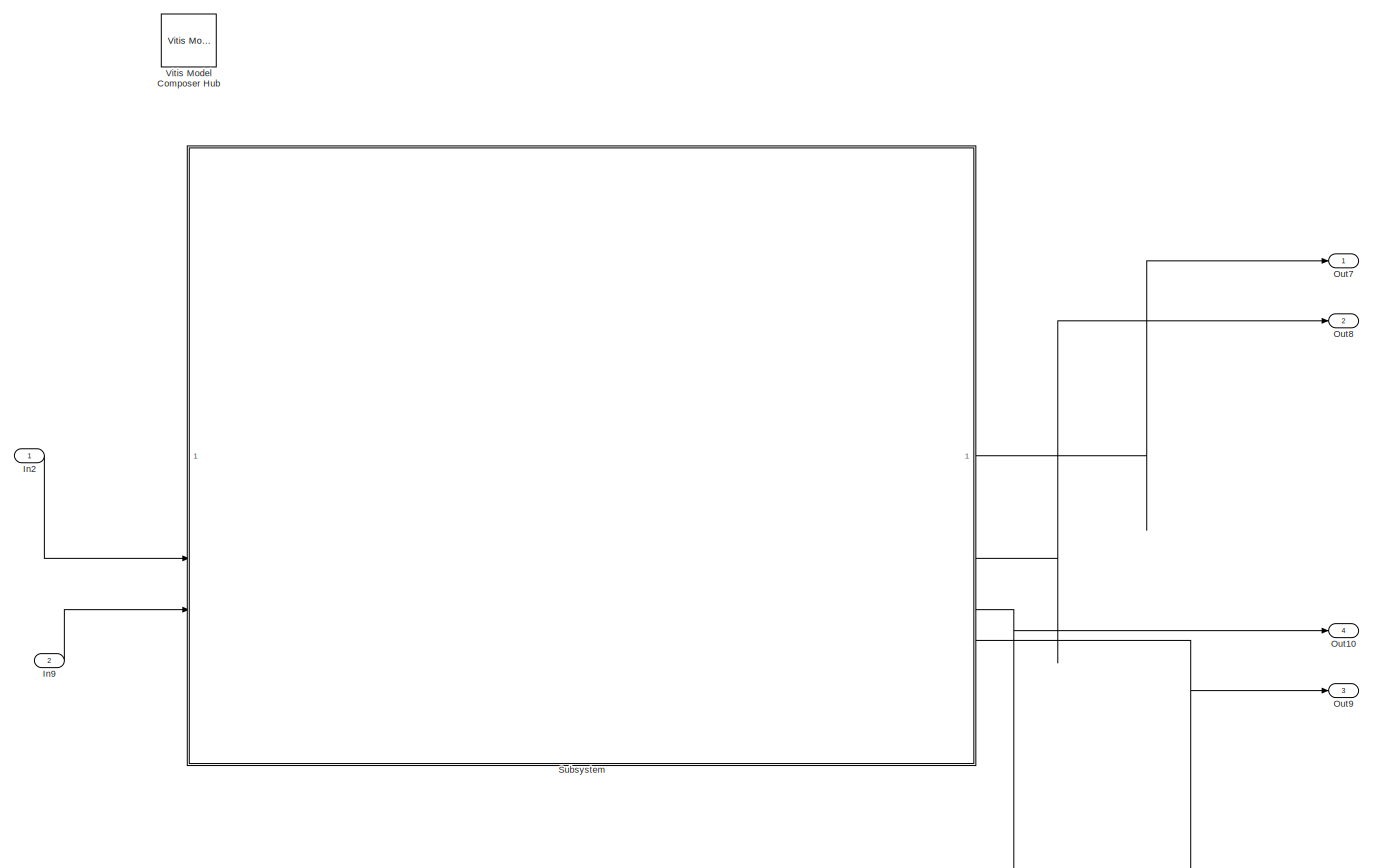
[diagram: root canvas - part 1/1, most of the canvas]
MODEL slx_37cddf83f31d
KIND model
CONFIG AbsTol = auto
CONFIG EnableMultiTasking = off
CONFIG FixedStep = auto
CONFIG MaxStep = auto
CONFIG MinStep = auto
CONFIG RelTol = 1e-3
CONFIG SampleTimeConstraint = Unconstrained
CONFIG SolverName = VariableStepAuto
CONFIG StartTime = 0.0
CONFIG StopTime = 0.001
BLOCK [Inport] In2
BLOCK [Inport] In9
  Port = 2
BLOCK [Outport] Out10
  Port = 4
BLOCK [Outport] Out7
BLOCK [Outport] Out8
  Port = 2
BLOCK [Outport] Out9
  Port = 3
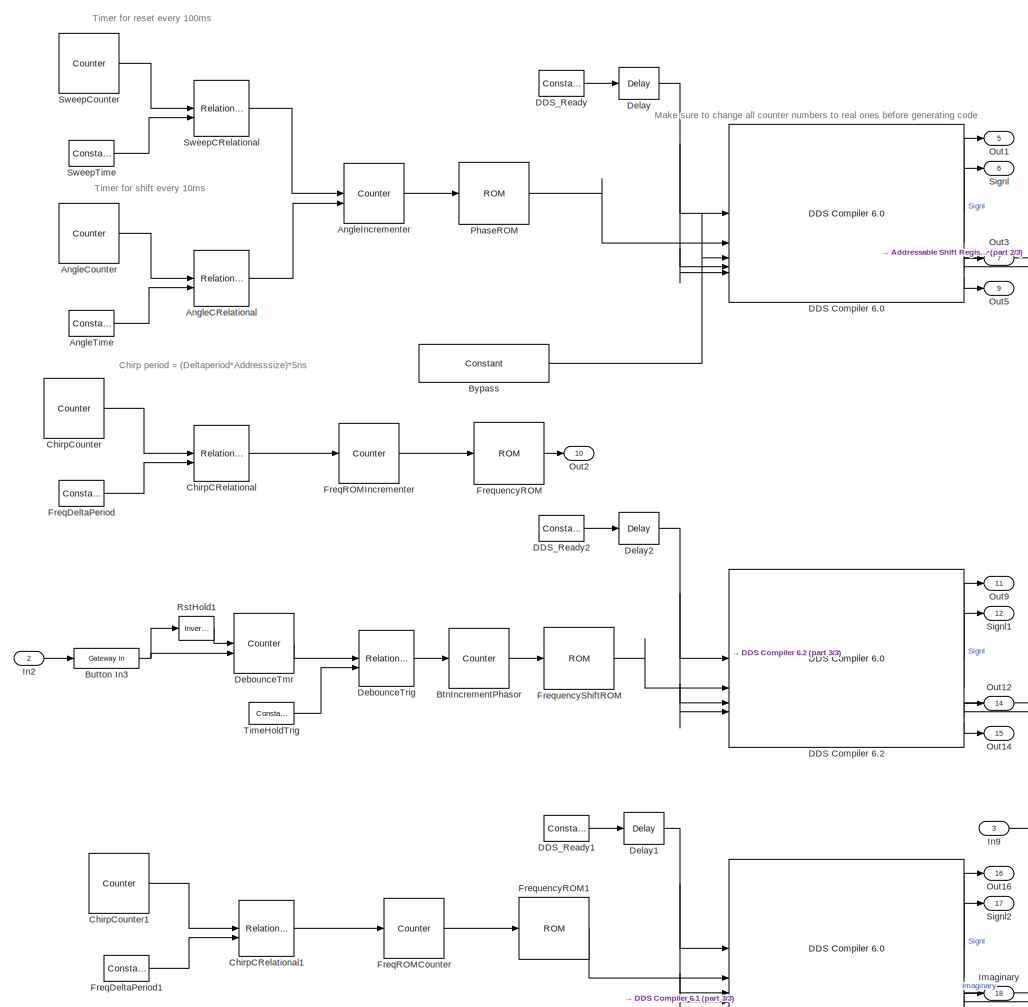
[diagram: Subsystem - part 1/3, left side, full height]
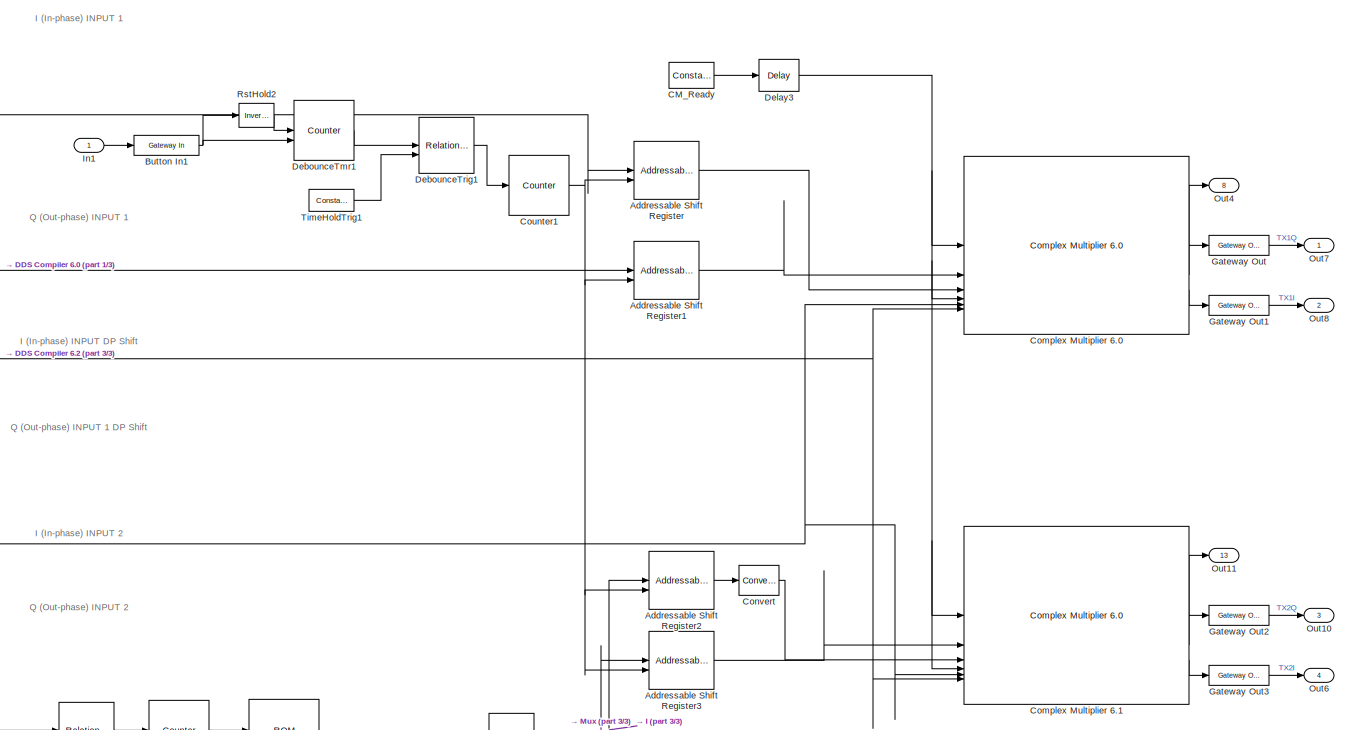
[diagram: Subsystem - part 2/3, middle right region]
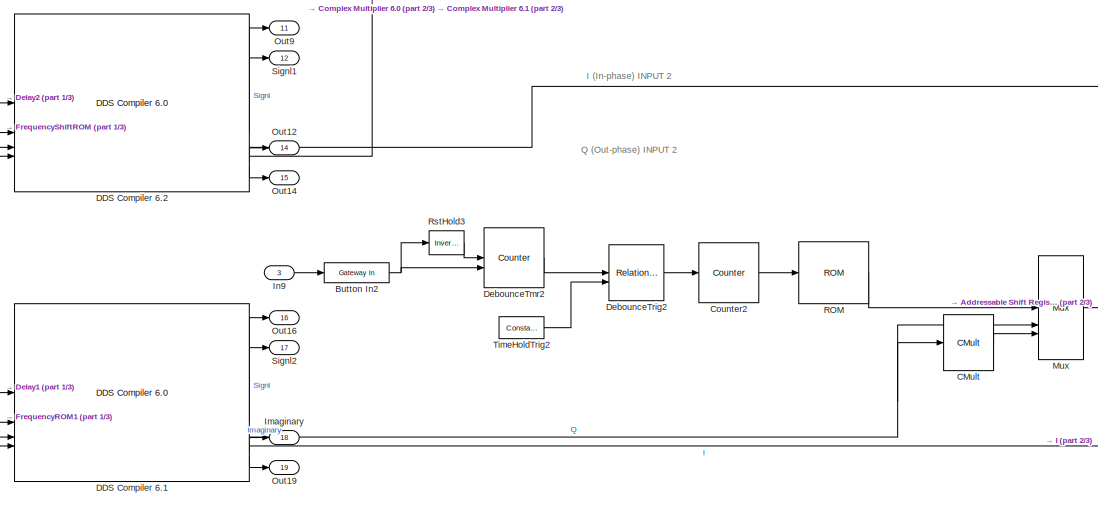
[diagram: Subsystem - part 3/3, bottom center region]
BLOCK [SubSystem] Subsystem
  SystemSampleTime = 1/200e6
BLOCK [Reference] Subsystem/Addressable Shift Register  REF=hdlBasic/Addressable Shift Register
  SourceBlock = hdlBasic/Addressable Shift Register
  SourceType = Addressable Shift Register Block
BLOCK [Reference] Subsystem/Addressable Shift Register1  REF=hdlBasic/Addressable Shift Register
  SourceBlock = hdlBasic/Addressable Shift Register
  SourceType = Addressable Shift Register Block
BLOCK [Reference] Subsystem/Addressable Shift Register2  REF=hdlBasic/Addressable Shift Register
  SourceBlock = hdlBasic/Addressable Shift Register
  SourceType = Addressable Shift Register Block
BLOCK [Reference] Subsystem/Addressable Shift Register3  REF=hdlBasic/Addressable Shift Register
  SourceBlock = hdlBasic/Addressable Shift Register
  SourceType = Addressable Shift Register Block
BLOCK [Reference] Subsystem/AngleCRelational  REF=hdlBasic/Relational
  SourceBlock = hdlBasic/Relational
  SourceType = Arithmetic Relational Operator Block
BLOCK [Reference] Subsystem/AngleCounter  REF=hdlBasic/Counter
  SourceBlock = hdlBasic/Counter
  SourceType = Counter Block
BLOCK [Reference] Subsystem/AngleIncrementer  REF=hdlBasic/Counter
  SourceBlock = hdlBasic/Counter
  SourceType = Counter Block
BLOCK [Reference] Subsystem/AngleTime  REF=hdlBasic/Constant
  SourceBlock = hdlBasic/Constant
  SourceType = Constant Block Block
BLOCK [Reference] Subsystem/BtnIncrementPhasor  REF=hdlBasic/Counter
  SourceBlock = hdlBasic/Counter
  SourceType = Counter Block
BLOCK [Reference] Subsystem/Button In1  REF=hdlBasic/Gateway In
  SourceBlock = hdlBasic/Gateway In
  SourceType = Gateway In Block
BLOCK [Reference] Subsystem/Button In2  REF=hdlBasic/Gateway In
  SourceBlock = hdlBasic/Gateway In
  SourceType = Gateway In Block
BLOCK [Reference] Subsystem/Button In3  REF=hdlBasic/Gateway In
  SourceBlock = hdlBasic/Gateway In
  SourceType = Gateway In Block
BLOCK [Reference] Subsystem/Bypass  REF=hdlBasic/Constant
  SourceBlock = hdlBasic/Constant
  SourceType = Constant Block Block
BLOCK [Reference] Subsystem/CM_Ready  REF=hdlBasic/Constant
  SourceBlock = hdlBasic/Constant
  SourceType = Constant Block Block
BLOCK [Reference] Subsystem/CMult  REF=hdlBasic/CMult
  SourceBlock = hdlBasic/CMult
  SourceType = Constant Multiplier Block
BLOCK [Reference] Subsystem/ChirpCRelational  REF=hdlBasic/Relational
  SourceBlock = hdlBasic/Relational
  SourceType = Arithmetic Relational Operator Block
BLOCK [Reference] Subsystem/ChirpCRelational1  REF=hdlBasic/Relational
  SourceBlock = hdlBasic/Relational
  SourceType = Arithmetic Relational Operator Block
BLOCK [Reference] Subsystem/ChirpCounter  REF=hdlBasic/Counter
  SourceBlock = hdlBasic/Counter
  SourceType = Counter Block
BLOCK [Reference] Subsystem/ChirpCounter1  REF=hdlBasic/Counter
  SourceBlock = hdlBasic/Counter
  SourceType = Counter Block
BLOCK [Reference] Subsystem/Complex Multiplier 6.0  REF=hdlDSPIP/Complex Multiplier 6.0 
  SourceBlock = hdlDSPIP/Complex Multiplier 6.0
  SourceType = Complex Multiplier 6.0  Block
BLOCK [Reference] Subsystem/Complex Multiplier 6.1  REF=hdlDSPIP/Complex Multiplier 6.0 
  SourceBlock = hdlDSPIP/Complex Multiplier 6.0
  SourceType = Complex Multiplier 6.0  Block
BLOCK [Reference] Subsystem/Convert  REF=hdlBasic/Convert
  SourceBlock = hdlBasic/Convert
  SourceType = Type Converter Block
BLOCK [Reference] Subsystem/Counter1  REF=hdlBasic/Counter
  SourceBlock = hdlBasic/Counter
  SourceType = Counter Block
BLOCK [Reference] Subsystem/Counter2  REF=hdlBasic/Counter
  SourceBlock = hdlBasic/Counter
  SourceType = Counter Block
BLOCK [Reference] Subsystem/DDS Compiler 6.0  REF=hdlDSPIP/DDS Compiler 6.0 
  SourceBlock = hdlDSPIP/DDS Compiler 6.0
  SourceType = DDS Compiler 6.0 Block
BLOCK [Reference] Subsystem/DDS Compiler 6.1  REF=hdlDSPIP/DDS Compiler 6.0 
  SourceBlock = hdlDSPIP/DDS Compiler 6.0
  SourceType = DDS Compiler 6.0 Block
BLOCK [Reference] Subsystem/DDS Compiler 6.2  REF=hdlDSPIP/DDS Compiler 6.0 
  SourceBlock = hdlDSPIP/DDS Compiler 6.0
  SourceType = DDS Compiler 6.0 Block
BLOCK [Reference] Subsystem/DDS_Ready  REF=hdlBasic/Constant
  SourceBlock = hdlBasic/Constant
  SourceType = Constant Block Block
BLOCK [Reference] Subsystem/DDS_Ready1  REF=hdlBasic/Constant
  SourceBlock = hdlBasic/Constant
  SourceType = Constant Block Block
BLOCK [Reference] Subsystem/DDS_Ready2  REF=hdlBasic/Constant
  SourceBlock = hdlBasic/Constant
  SourceType = Constant Block Block
BLOCK [Reference] Subsystem/DebounceTmr  REF=hdlBasic/Counter
  SourceBlock = hdlBasic/Counter
  SourceType = Counter Block
BLOCK [Reference] Subsystem/DebounceTmr1  REF=hdlBasic/Counter
  SourceBlock = hdlBasic/Counter
  SourceType = Counter Block
BLOCK [Reference] Subsystem/DebounceTmr2  REF=hdlBasic/Counter
  SourceBlock = hdlBasic/Counter
  SourceType = Counter Block
BLOCK [Reference] Subsystem/DebounceTrig  REF=hdlBasic/Relational
  SourceBlock = hdlBasic/Relational
  SourceType = Arithmetic Relational Operator Block
BLOCK [Reference] Subsystem/DebounceTrig1  REF=hdlBasic/Relational
  SourceBlock = hdlBasic/Relational
  SourceType = Arithmetic Relational Operator Block
BLOCK [Reference] Subsystem/DebounceTrig2  REF=hdlBasic/Relational
  SourceBlock = hdlBasic/Relational
  SourceType = Arithmetic Relational Operator Block
BLOCK [Reference] Subsystem/Delay  REF=hdlBasic/Delay
  SourceBlock = hdlBasic/Delay
  SourceType = Delay Block
BLOCK [Reference] Subsystem/Delay1  REF=hdlBasic/Delay
  SourceBlock = hdlBasic/Delay
  SourceType = Delay Block
BLOCK [Reference] Subsystem/Delay2  REF=hdlBasic/Delay
  SourceBlock = hdlBasic/Delay
  SourceType = Delay Block
BLOCK [Reference] Subsystem/Delay3  REF=hdlBasic/Delay
  SourceBlock = hdlBasic/Delay
  SourceType = Delay Block
BLOCK [Reference] Subsystem/FreqDeltaPeriod  REF=hdlBasic/Constant
  SourceBlock = hdlBasic/Constant
  SourceType = Constant Block Block
BLOCK [Reference] Subsystem/FreqDeltaPeriod1  REF=hdlBasic/Constant
  SourceBlock = hdlBasic/Constant
  SourceType = Constant Block Block
BLOCK [Reference] Subsystem/FreqROMCounter  REF=hdlBasic/Counter
  SourceBlock = hdlBasic/Counter
  SourceType = Counter Block
BLOCK [Reference] Subsystem/FreqROMIncrementer  REF=hdlBasic/Counter
  SourceBlock = hdlBasic/Counter
  SourceType = Counter Block
BLOCK [Reference] Subsystem/FrequencyROM  REF=hdlBasic/ROM
  SourceBlock = hdlBasic/ROM
  SourceType = Single Port Read-Only Memory Block
BLOCK [Reference] Subsystem/FrequencyROM1  REF=hdlBasic/ROM
  SourceBlock = hdlBasic/ROM
  SourceType = Single Port Read-Only Memory Block
BLOCK [Reference] Subsystem/FrequencyShiftROM  REF=hdlBasic/ROM
  SourceBlock = hdlBasic/ROM
  SourceType = Single Port Read-Only Memory Block
BLOCK [Reference] Subsystem/Gateway Out  REF=hdlBasic/Gateway Out
  SourceBlock = hdlBasic/Gateway Out
  SourceType = Gateway Out Block
BLOCK [Reference] Subsystem/Gateway Out1  REF=hdlBasic/Gateway Out
  SourceBlock = hdlBasic/Gateway Out
  SourceType = Gateway Out Block
BLOCK [Reference] Subsystem/Gateway Out2  REF=hdlBasic/Gateway Out
  SourceBlock = hdlBasic/Gateway Out
  SourceType = Gateway Out Block
BLOCK [Reference] Subsystem/Gateway Out3  REF=hdlBasic/Gateway Out
  SourceBlock = hdlBasic/Gateway Out
  SourceType = Gateway Out Block
BLOCK [Outport] Subsystem/Imaginary
  Port = 18
BLOCK [Inport] Subsystem/In1
BLOCK [Inport] Subsystem/In2
  Port = 2
BLOCK [Inport] Subsystem/In9
  Port = 3
BLOCK [Reference] Subsystem/Mux  REF=hdlBasic/Mux
  SourceBlock = hdlBasic/Mux
  SourceType = Bus Multiplexer Block
BLOCK [Outport] Subsystem/Out1
  Port = 5
BLOCK [Outport] Subsystem/Out10
  Port = 3
BLOCK [Outport] Subsystem/Out11
  Port = 13
BLOCK [Outport] Subsystem/Out12
  Port = 14
BLOCK [Outport] Subsystem/Out14
  Port = 15
BLOCK [Outport] Subsystem/Out16
  Port = 16
BLOCK [Outport] Subsystem/Out19
  Port = 19
BLOCK [Outport] Subsystem/Out2
  Port = 10
BLOCK [Outport] Subsystem/Out3
  Port = 7
BLOCK [Outport] Subsystem/Out4
  Port = 8
BLOCK [Outport] Subsystem/Out5
  Port = 9
BLOCK [Outport] Subsystem/Out6
  Port = 4
BLOCK [Outport] Subsystem/Out7
BLOCK [Outport] Subsystem/Out8
  Port = 2
BLOCK [Outport] Subsystem/Out9
  Port = 11
BLOCK [Reference] Subsystem/PhaseROM  REF=hdlBasic/ROM
  SourceBlock = hdlBasic/ROM
  SourceType = Single Port Read-Only Memory Block
BLOCK [Reference] Subsystem/ROM  REF=hdlBasic/ROM
  SourceBlock = hdlBasic/ROM
  SourceType = Single Port Read-Only Memory Block
BLOCK [Reference] Subsystem/RstHold1  REF=hdlBasic/Inverter
  SourceBlock = hdlBasic/Inverter
  SourceType = Inverter Block
BLOCK [Reference] Subsystem/RstHold2  REF=hdlBasic/Inverter
  SourceBlock = hdlBasic/Inverter
  SourceType = Inverter Block
BLOCK [Reference] Subsystem/RstHold3  REF=hdlBasic/Inverter
  SourceBlock = hdlBasic/Inverter
  SourceType = Inverter Block
BLOCK [Outport] Subsystem/Signl
  Port = 6
BLOCK [Outport] Subsystem/Signl1
  Port = 12
BLOCK [Outport] Subsystem/Signl2
  Port = 17
BLOCK [Reference] Subsystem/SweepCRelational  REF=hdlBasic/Relational
  SourceBlock = hdlBasic/Relational
  SourceType = Arithmetic Relational Operator Block
BLOCK [Reference] Subsystem/SweepCounter  REF=hdlBasic/Counter
  SourceBlock = hdlBasic/Counter
  SourceType = Counter Block
BLOCK [Reference] Subsystem/SweepTime  REF=hdlBasic/Constant
  SourceBlock = hdlBasic/Constant
  SourceType = Constant Block Block
BLOCK [Reference] Subsystem/TimeHoldTrig  REF=hdlBasic/Constant
  SourceBlock = hdlBasic/Constant
  SourceType = Constant Block Block
BLOCK [Reference] Subsystem/TimeHoldTrig1  REF=hdlBasic/Constant
  SourceBlock = hdlBasic/Constant
  SourceType = Constant Block Block
BLOCK [Reference] Subsystem/TimeHoldTrig2  REF=hdlBasic/Constant
  SourceBlock = hdlBasic/Constant
  SourceType = Constant Block Block
BLOCK [Reference] Vitis Model Composer Hub  REF=vmcUtilities/Vitis Model Composer Hub
  SourceBlock = vmcUtilities/Vitis Model Composer Hub
  SourceType = VMC Hub
  Tag = genX
  UserDataPersistent = on
ANNOTATION Subsystem: Chirp period = (Deltaperiod*Addresssize)*5ns
ANNOTATION Subsystem: I (In-phase) INPUT 1
ANNOTATION Subsystem: I (In-phase) INPUT 2
ANNOTATION Subsystem: I (In-phase) INPUT DP Shift
ANNOTATION Subsystem: Make sure to change all counter numbers to real ones before generating code
ANNOTATION Subsystem: Q (Out-phase) INPUT 1
ANNOTATION Subsystem: Q (Out-phase) INPUT 1 DP Shift
ANNOTATION Subsystem: Q (Out-phase) INPUT 2
ANNOTATION Subsystem: Timer for reset every 100ms
ANNOTATION Subsystem: Timer for shift every 10ms
LINE In2:1 -> Subsystem:2
LINE In9:1 -> Subsystem:3
LINE Subsystem/Addressable Shift Register1:1 -> Subsystem/Complex Multiplier 6.0:2
LINE Subsystem/Addressable Shift Register2:1 -> Subsystem/Convert:1
LINE Subsystem/Addressable Shift Register3:1 -> Subsystem/Complex Multiplier 6.1:2
LINE Subsystem/Addressable Shift Register:1 -> Subsystem/Complex Multiplier 6.0:3
LINE Subsystem/AngleCRelational:1 -> Subsystem/AngleIncrementer:2
LINE Subsystem/AngleCounter:1 -> Subsystem/AngleCRelational:1
LINE Subsystem/AngleIncrementer:1 -> Subsystem/PhaseROM:1
LINE Subsystem/AngleTime:1 -> Subsystem/AngleCRelational:2
LINE Subsystem/BtnIncrementPhasor:1 -> Subsystem/FrequencyShiftROM:1
NET Subsystem/Button In1:1 -> Subsystem/DebounceTmr1:2, Subsystem/RstHold2:1
NET Subsystem/Button In2:1 -> Subsystem/DebounceTmr2:2, Subsystem/RstHold3:1
NET Subsystem/Button In3:1 -> Subsystem/DebounceTmr:2, Subsystem/RstHold1:1
LINE Subsystem/Bypass:1 -> Subsystem/DDS Compiler 6.0:3
LINE Subsystem/CM_Ready:1 -> Subsystem/Delay3:1
LINE Subsystem/CMult:1 -> Subsystem/Mux:3
LINE Subsystem/ChirpCRelational1:1 -> Subsystem/FreqROMCounter:1
LINE Subsystem/ChirpCRelational:1 -> Subsystem/FreqROMIncrementer:1
LINE Subsystem/ChirpCounter1:1 -> Subsystem/ChirpCRelational1:1
LINE Subsystem/ChirpCounter:1 -> Subsystem/ChirpCRelational:1
LINE Subsystem/Complex Multiplier 6.0:1 -> Subsystem/Out4:1
LINE Subsystem/Complex Multiplier 6.0:2 -> Subsystem/Gateway Out:1
LINE Subsystem/Complex Multiplier 6.0:3 -> Subsystem/Gateway Out1:1
LINE Subsystem/Complex Multiplier 6.1:1 -> Subsystem/Out11:1
LINE Subsystem/Complex Multiplier 6.1:2 -> Subsystem/Gateway Out2:1
LINE Subsystem/Complex Multiplier 6.1:3 -> Subsystem/Gateway Out3:1
LINE Subsystem/Convert:1 -> Subsystem/Complex Multiplier 6.1:3
NET Subsystem/Counter1:1 -> Subsystem/Addressable Shift Register1:2, Subsystem/Addressable Shift Register2:2, Subsystem/Addressable Shift Register3:2, Subsystem/Addressable Shift Register:2
LINE Subsystem/Counter2:1 -> Subsystem/ROM:1
LINE Subsystem/DDS Compiler 6.0:1 -> Subsystem/Out1:1
LINE Subsystem/DDS Compiler 6.0:2 -> Subsystem/Signl:1
LINE Subsystem/DDS Compiler 6.0:3 -> Subsystem/Addressable Shift Register1:1
LINE Subsystem/DDS Compiler 6.0:4 -> Subsystem/Addressable Shift Register:1
LINE Subsystem/DDS Compiler 6.0:5 -> Subsystem/Out3:1
LINE Subsystem/DDS Compiler 6.0:6 -> Subsystem/Out5:1
LINE Subsystem/DDS Compiler 6.1:1 -> Subsystem/Out16:1
LINE Subsystem/DDS Compiler 6.1:2 -> Subsystem/Signl2:1
NET Subsystem/DDS Compiler 6.1:3 -> Subsystem/CMult:1, Subsystem/Mux:2
LINE Subsystem/DDS Compiler 6.1:4 -> Subsystem/Addressable Shift Register2:1
LINE Subsystem/DDS Compiler 6.1:5 -> Subsystem/Imaginary:1
LINE Subsystem/DDS Compiler 6.1:6 -> Subsystem/Out19:1
LINE Subsystem/DDS Compiler 6.2:1 -> Subsystem/Out9:1
LINE Subsystem/DDS Compiler 6.2:2 -> Subsystem/Signl1:1
NET Subsystem/DDS Compiler 6.2:3 -> Subsystem/Complex Multiplier 6.0:5, Subsystem/Complex Multiplier 6.1:5
NET Subsystem/DDS Compiler 6.2:4 -> Subsystem/Complex Multiplier 6.0:6, Subsystem/Complex Multiplier 6.1:6
LINE Subsystem/DDS Compiler 6.2:5 -> Subsystem/Out12:1
LINE Subsystem/DDS Compiler 6.2:6 -> Subsystem/Out14:1
LINE Subsystem/DDS_Ready1:1 -> Subsystem/Delay1:1
LINE Subsystem/DDS_Ready2:1 -> Subsystem/Delay2:1
LINE Subsystem/DDS_Ready:1 -> Subsystem/Delay:1
LINE Subsystem/DebounceTmr1:1 -> Subsystem/DebounceTrig1:1
LINE Subsystem/DebounceTmr2:1 -> Subsystem/DebounceTrig2:1
LINE Subsystem/DebounceTmr:1 -> Subsystem/DebounceTrig:1
LINE Subsystem/DebounceTrig1:1 -> Subsystem/Counter1:1
LINE Subsystem/DebounceTrig2:1 -> Subsystem/Counter2:1
LINE Subsystem/DebounceTrig:1 -> Subsystem/BtnIncrementPhasor:1
NET Subsystem/Delay1:1 -> Subsystem/DDS Compiler 6.1:1, Subsystem/DDS Compiler 6.1:3, Subsystem/DDS Compiler 6.1:4
NET Subsystem/Delay2:1 -> Subsystem/DDS Compiler 6.2:1, Subsystem/DDS Compiler 6.2:3, Subsystem/DDS Compiler 6.2:4
NET Subsystem/Delay3:1 -> Subsystem/Complex Multiplier 6.0:1, Subsystem/Complex Multiplier 6.0:4, Subsystem/Complex Multiplier 6.1:1, Subsystem/Complex Multiplier 6.1:4
NET Subsystem/Delay:1 -> Subsystem/DDS Compiler 6.0:1, Subsystem/DDS Compiler 6.0:4, Subsystem/DDS Compiler 6.0:5
LINE Subsystem/FreqDeltaPeriod1:1 -> Subsystem/ChirpCRelational1:2
LINE Subsystem/FreqDeltaPeriod:1 -> Subsystem/ChirpCRelational:2
LINE Subsystem/FreqROMCounter:1 -> Subsystem/FrequencyROM1:1
LINE Subsystem/FreqROMIncrementer:1 -> Subsystem/FrequencyROM:1
LINE Subsystem/FrequencyROM1:1 -> Subsystem/DDS Compiler 6.1:2
LINE Subsystem/FrequencyROM:1 -> Subsystem/Out2:1
LINE Subsystem/FrequencyShiftROM:1 -> Subsystem/DDS Compiler 6.2:2
LINE Subsystem/Gateway Out1:1 -> Subsystem/Out8:1
LINE Subsystem/Gateway Out2:1 -> Subsystem/Out10:1
LINE Subsystem/Gateway Out3:1 -> Subsystem/Out6:1
LINE Subsystem/Gateway Out:1 -> Subsystem/Out7:1
LINE Subsystem/In1:1 -> Subsystem/Button In1:1
LINE Subsystem/In2:1 -> Subsystem/Button In3:1
LINE Subsystem/In9:1 -> Subsystem/Button In2:1
LINE Subsystem/Mux:1 -> Subsystem/Addressable Shift Register3:1
LINE Subsystem/PhaseROM:1 -> Subsystem/DDS Compiler 6.0:2
LINE Subsystem/ROM:1 -> Subsystem/Mux:1
LINE Subsystem/RstHold1:1 -> Subsystem/DebounceTmr:1
LINE Subsystem/RstHold2:1 -> Subsystem/DebounceTmr1:1
LINE Subsystem/RstHold3:1 -> Subsystem/DebounceTmr2:1
LINE Subsystem/SweepCRelational:1 -> Subsystem/AngleIncrementer:1
LINE Subsystem/SweepCounter:1 -> Subsystem/SweepCRelational:1
LINE Subsystem/SweepTime:1 -> Subsystem/SweepCRelational:2
LINE Subsystem/TimeHoldTrig1:1 -> Subsystem/DebounceTrig1:2
LINE Subsystem/TimeHoldTrig2:1 -> Subsystem/DebounceTrig2:2
LINE Subsystem/TimeHoldTrig:1 -> Subsystem/DebounceTrig:2
LINE Subsystem:1 -> Out7:1
LINE Subsystem:2 -> Out8:1
LINE Subsystem:3 -> Out10:1
LINE Subsystem:4 -> Out9:1
note: NET lines group one-source signal fan-out (src -> all destinations, sorted); 1:1 wires keep LINE
